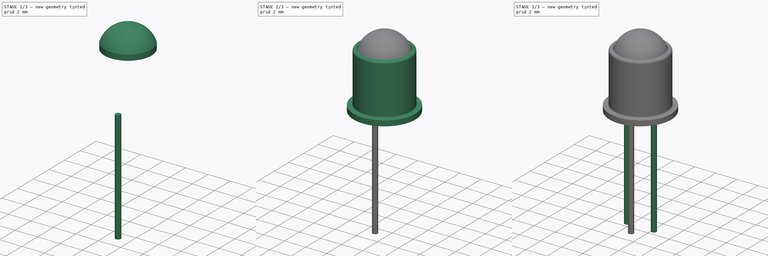
[diagram: build sequence overview — one tinted view per stage of 3, left to right]
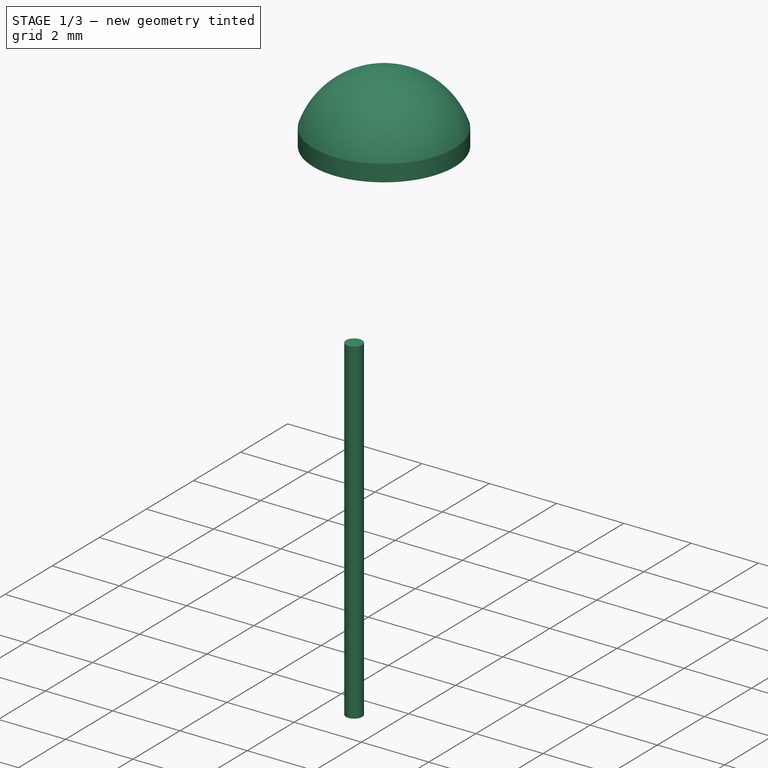
[diagram: stage 1 of 3 — iso view after this stage's code; geometry added in this stage tinted green]
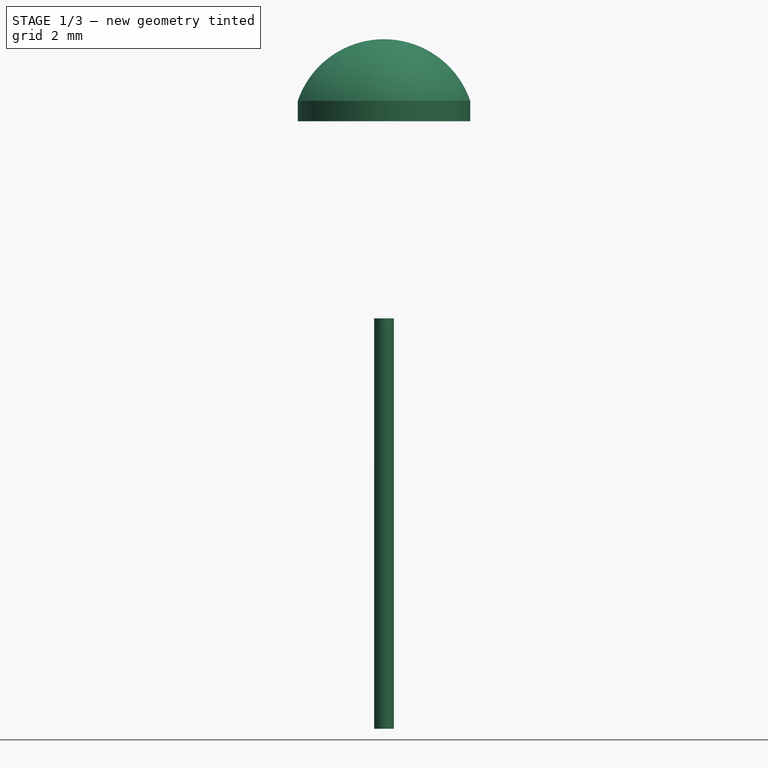
[diagram: stage 1 of 3 — front view after this stage's code; geometry added in this stage tinted green]
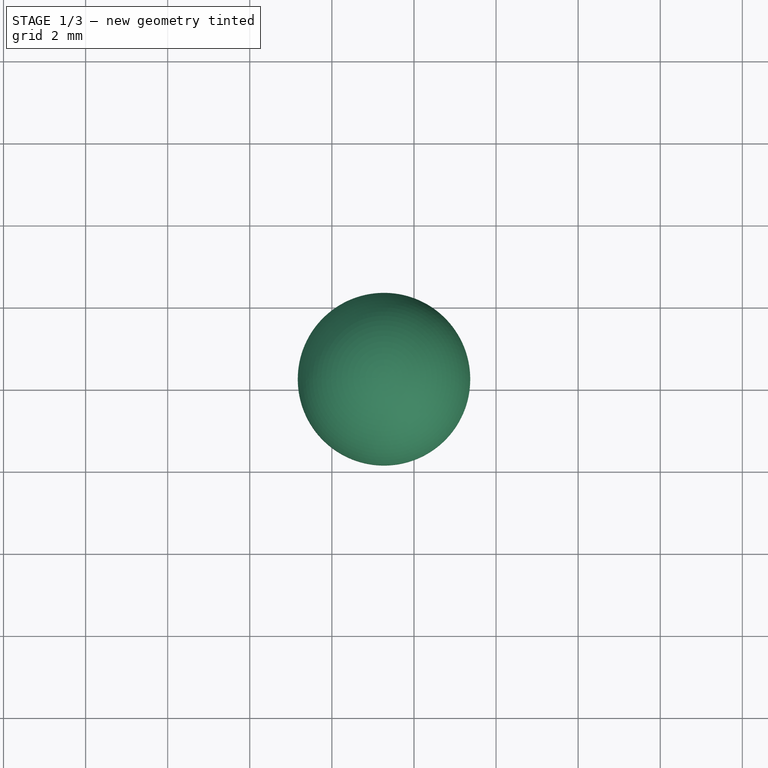
[diagram: stage 1 of 3 — top view after this stage's code; geometry added in this stage tinted green]
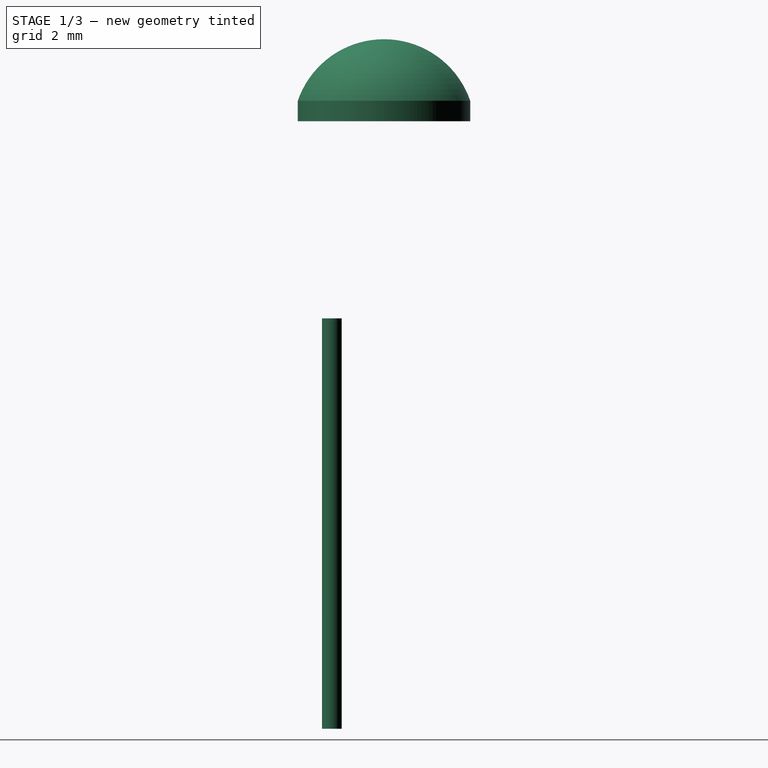
[diagram: stage 1 of 3 — right view after this stage's code; geometry added in this stage tinted green]
FCSTD DOCUMENT  (FreeCAD 0.16R6703 (Git))
Label: TO-18_Lens_3Pin
License: All rights reserved
LicenseURL: http://en.wikipedia.org/wiki/All_rights_reserved
objects: Sketcher::SketchObject×6, PartDesign::Pad×4, PartDesign::Revolution×2
note: 18 computed .brp shape members not serialized (recipe doc carries the construction recipe); baked Part::Feature solids carry a one-line shape summary decoded from their .brp

FEATURE [Sketcher::SketchObject] Sketch005
  Placement = pos=(0,0,5) rot=(0,0,1;0rad)
  sketch-geometry (1):
    g0: Circle CenterX=1.27 CenterY=-1.27 CenterZ=0 NormalX=0 NormalY=0 NormalZ=1 Radius=0.24
  constraints (3):
    c: Radius(g0) = 0.24
    c: DistanceX(g-1,g0) = 1.27
    c: DistanceY(g0,g-1) = 1.27
FEATURE [PartDesign::Pad] Pad004
  Length = 10
  Length2 = 100
  Placement = pos=(0,0,5) rot=(0,0,1;0rad)
  Reversed = true
  Sketch = -> Sketch005
  Type = 0
FEATURE [Sketcher::SketchObject] Sketch006
  Placement = pos=(0,0,0) rot=(1,0,0;1.5708rad)
  sketch-geometry (5):
    g0: ArcOfCircle CenterX=1.27 CenterY=9.5788 CenterZ=0 NormalX=0 NormalY=0 NormalZ=1 Radius=2.2212 StartAngle=1.5708 EndAngle=2.81091
    g1: LineSegment StartX=1.27 StartY=11.8 StartZ=0 EndX=1.27 EndY=9.8 EndZ=0
    g2: LineSegment StartX=1.27 StartY=9.8 StartZ=0 EndX=-0.83086 EndY=9.8 EndZ=0
    g3: LineSegment StartX=-0.83086 StartY=9.8 StartZ=0 EndX=-0.83086 EndY=10.3 EndZ=0
    g4: LineSegment [constr] StartX=1.27 StartY=10.4542 StartZ=0 EndX=1.27 EndY=7.67168 EndZ=0
  constraints (15):
    c: Coincident(g1,g0)
    c: Vertical(g1)
    c: Coincident(g2,g1)
    c: Horizontal(g2)
    c: Coincident(g3,g2)
    c: Vertical(g3)
    c: DistanceY(g1,g0) = 2
    c: DistanceY(g0,g0) = 1.5
    c: DistanceX(g-1,g1) = 1.27
    c: Coincident(g0,g3)
    c: DistanceX(g2,g2) = 2.10086
    c: DistanceX(g1,g0) = 0
    c: PointOnObject(g4,g1)
    c: Vertical(g4)
    c: DistanceY(g-1,g0) = 10.3
FEATURE [PartDesign::Revolution] Revolution001
  Angle = 360
  Axis = (0,0,-2.78251)
  Base = (1.27,0,10.4542)
  Placement = pos=(0,0,0) rot=(1,0,0;1.5708rad)
  ReferenceAxis = -> Sketch006 [Axis0]
  Reversed = true
  Sketch = -> Sketch006
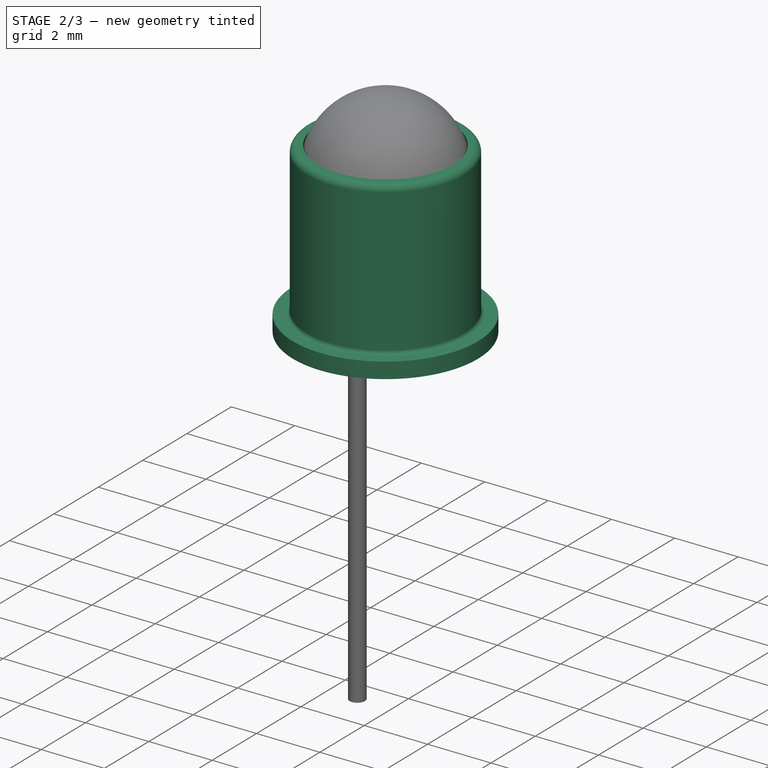
[diagram: stage 2 of 3 — iso view after this stage's code; geometry added in this stage tinted green]
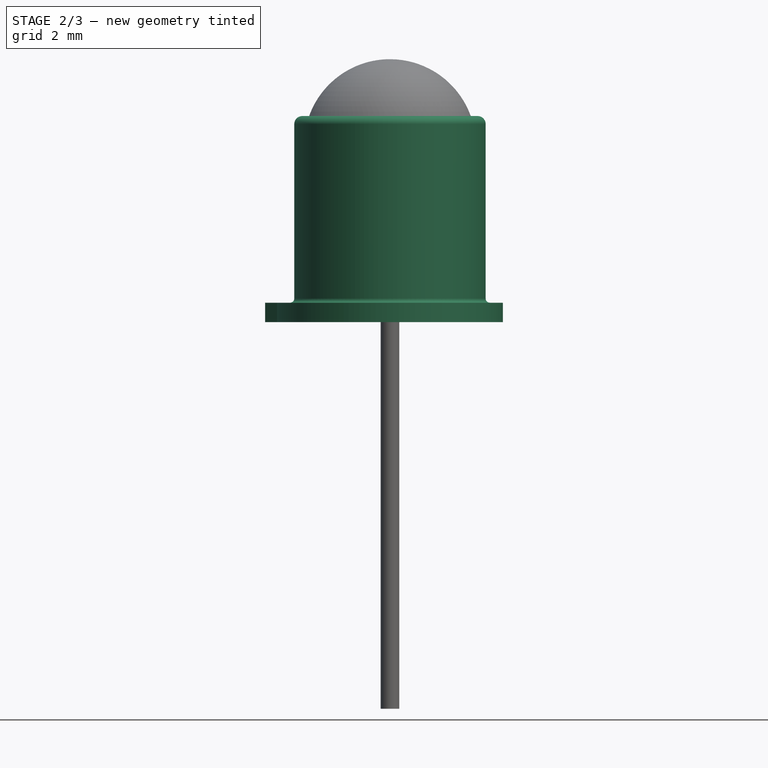
[diagram: stage 2 of 3 — front view after this stage's code; geometry added in this stage tinted green]
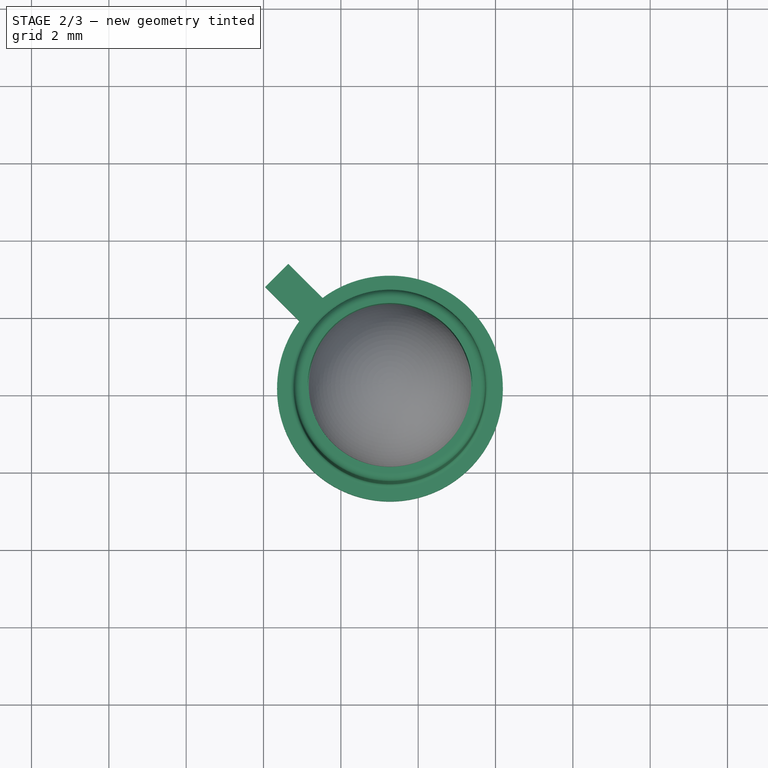
[diagram: stage 2 of 3 — top view after this stage's code; geometry added in this stage tinted green]
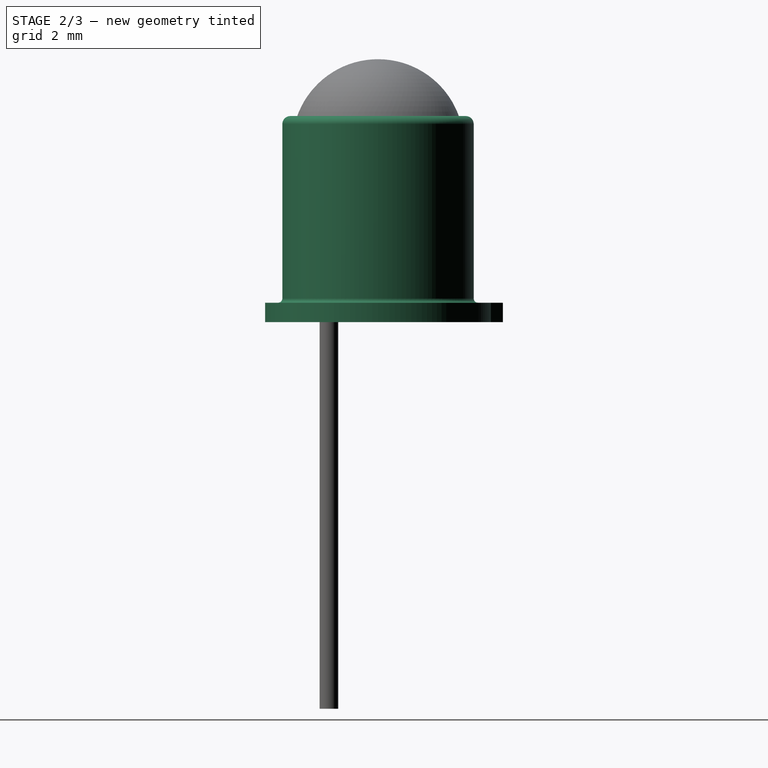
[diagram: stage 2 of 3 — right view after this stage's code; geometry added in this stage tinted green]
FEATURE [Sketcher::SketchObject] Sketch003
  Placement = pos=(0,0,0) rot=(1,0,0;1.5708rad)
  expr: Constraints[6] = 5.84 / 2
  sketch-geometry (11):
    g0: LineSegment [constr] StartX=1.27 StartY=2.55067 StartZ=0 EndX=1.27 EndY=10.33 EndZ=0
    g1: LineSegment StartX=1.27 StartY=5 StartZ=0 EndX=-1.65 EndY=5 EndZ=0
    g2: LineSegment StartX=-1.65 StartY=5 StartZ=0 EndX=-1.65 EndY=5.5 EndZ=0
    g3: LineSegment StartX=-1.65 StartY=5.5 StartZ=0 EndX=-1.31193 EndY=5.50278 EndZ=0
    g4: LineSegment StartX=-1.205 StartY=5.6106 StartZ=0 EndX=-1.205 EndY=10.123 EndZ=0
    g5: ArcOfCircle CenterX=-1.31282 CenterY=5.6106 CenterZ=0 NormalX=0 NormalY=0 NormalZ=1 Radius=0.107818 StartAngle=4.72062 EndAngle=6.28319
    g6: LineSegment StartX=-0.857826 StartY=10.33 StartZ=0 EndX=-0.857826 EndY=5.6729 EndZ=0
    g7: LineSegment StartX=-0.857826 StartY=5.6729 StartZ=0 EndX=1.27 EndY=5.6729 EndZ=0
    g8: LineSegment StartX=1.27 StartY=5.6729 StartZ=0 EndX=1.27 EndY=5 EndZ=0
    g9: LineSegment StartX=-0.857826 StartY=10.33 StartZ=0 EndX=-0.998031 EndY=10.33 EndZ=0
    g10: ArcOfCircle CenterX=-0.998031 CenterY=10.123 CenterZ=0 NormalX=0 NormalY=0 NormalZ=1 Radius=0.206969 StartAngle=1.5708 EndAngle=3.14159
  constraints (21):
    c: DistanceX(g-1,g0) = 1.27
    c: Horizontal(g1)
    c: DistanceY(g-1,g1) = 5
    c: Coincident(g2,g1)
    c: Vertical(g2)
    c: DistanceY(g2,g2) = 0.5
    c: DistanceX(g1,g1) = 2.92
    c: Coincident(g3,g2)
    c: Vertical(g4)
    c: Tangent(g3,g5) = -1.5708
    c: Tangent(g4,g5) = -1.5708
    c: Vertical(g6)
    c: Coincident(g7,g6)
    c: Horizontal(g7)
    c: Vertical(g0)
    c: Coincident(g9,g6)
    c: Horizontal(g9)
    c: DistanceY(g1,g6) = 5.33
    c: Tangent(g4,g10) = 1.5708
    c: Tangent(g9,g10) = -1.5708
    c: DistanceX(g4,g0) = 2.475
FEATURE [PartDesign::Revolution] Revolution
  Angle = 360
  Axis = (0,0,7.77933)
  Base = (1.27,0,2.55067)
  Placement = pos=(0,0,0) rot=(1,0,0;1.5708rad)
  ReferenceAxis = -> Sketch003 [Axis0]
  Sketch = -> Sketch003
FEATURE [Sketcher::SketchObject] Sketch004
  Placement = pos=(0,0,5) rot=(0,0,1;0rad)
  expr: Constraints[11] = 5.84 / 2 + 1.22
  sketch-geometry (5):
    g0: GeomPoint [constr] X=1.27 Y=0 Z=0
    g1: LineSegment StartX=1.57052 StartY=0.30052 StartZ=0 EndX=-1.3569 EndY=3.22794 EndZ=0
    g2: LineSegment StartX=0.96948 StartY=-0.30052 StartZ=0 EndX=-1.95794 EndY=2.6269 EndZ=0
    g3: LineSegment StartX=-1.95794 StartY=2.6269 StartZ=0 EndX=-1.3569 EndY=3.22794 EndZ=0
    g4: LineSegment StartX=0.96948 StartY=-0.30052 StartZ=0 EndX=1.57052 EndY=0.30052 EndZ=0
  constraints (14):
    c: PointOnObject(g0,g-1)
    c: DistanceX(g-1,g0) = 1.27
    c: Coincident(g3,g2)
    c: Coincident(g3,g1)
    c: Coincident(g4,g2)
    c: Coincident(g4,g1)
    c: PointOnObject(g0,g4)
    c: Parallel(g4,g3)
    c: Parallel(g2,g1)
    c: Perpendicular(g2,g3)
    c: Distance(g3) = 0.85
    c: Distance(g1) = 4.14
    c: Symmetric(g4,g4,g0)
    c: Angle(g4,g-1) = 2.35619
FEATURE [PartDesign::Pad] Pad003
  Length = 0.5
  Length2 = 100
  Placement = pos=(0,0,5) rot=(0,0,1;0rad)
  Sketch = -> Sketch004
  Type = 0
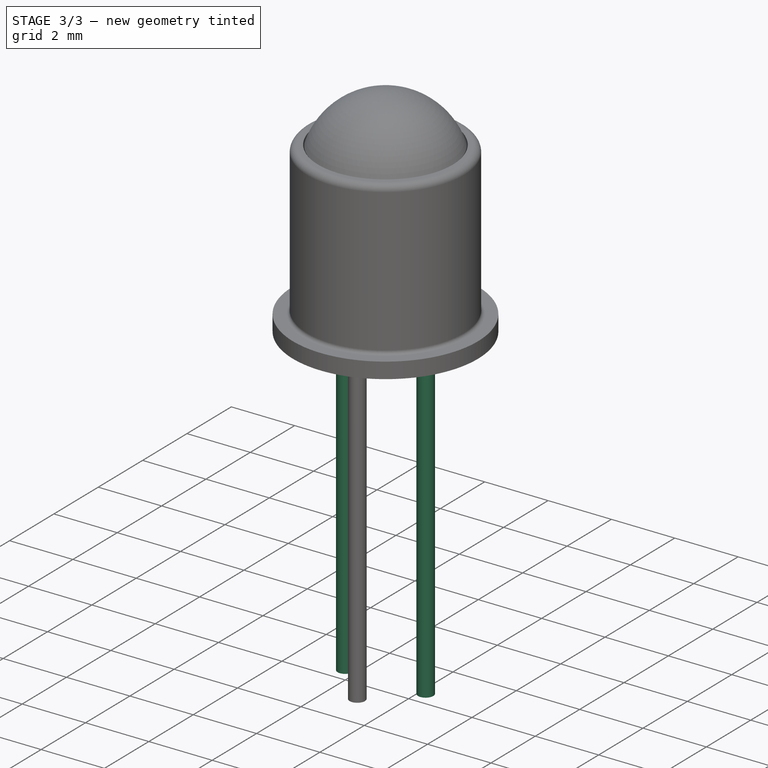
[diagram: stage 3 of 3 — iso view after this stage's code; geometry added in this stage tinted green]
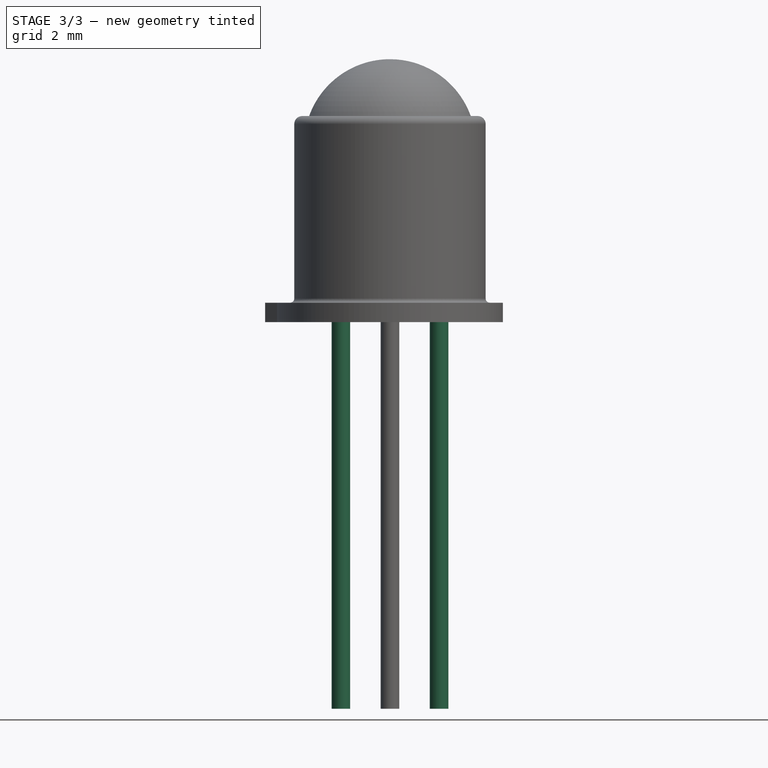
[diagram: stage 3 of 3 — front view after this stage's code; geometry added in this stage tinted green]
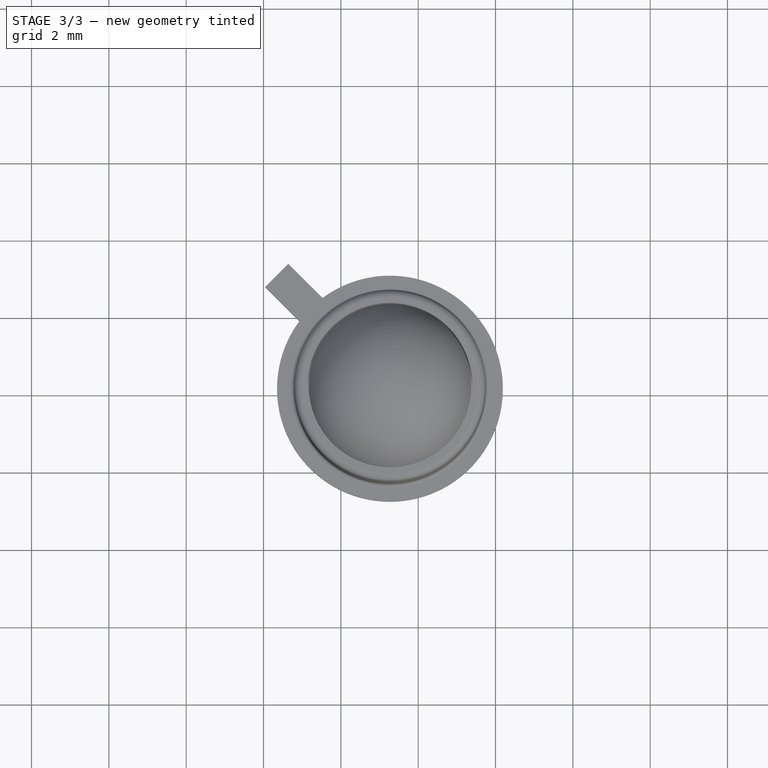
[diagram: stage 3 of 3 — top view after this stage's code; geometry added in this stage tinted green]
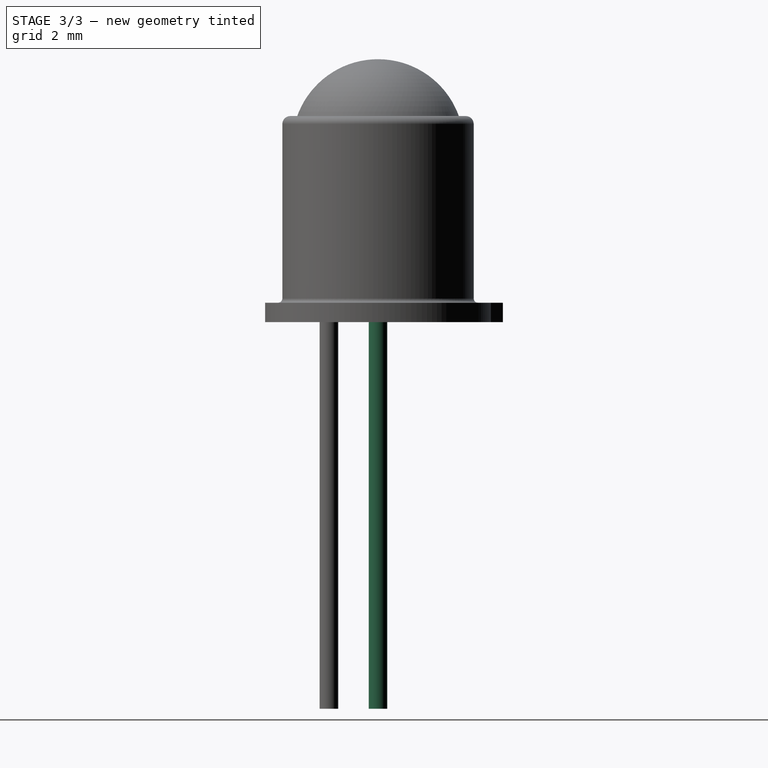
[diagram: stage 3 of 3 — right view after this stage's code; geometry added in this stage tinted green]
FEATURE [Sketcher::SketchObject] Sketch
  Placement = pos=(0,0,5) rot=(0,0,1;0rad)
  expr: Constraints[1] = 0.48 / 2
  sketch-geometry (1):
    g0: Circle CenterX=0 CenterY=0 CenterZ=0 NormalX=0 NormalY=0 NormalZ=1 Radius=0.24
  constraints (2):
    c: Coincident(g0,g-1)
    c: Radius(g0) = 0.24
FEATURE [Sketcher::SketchObject] Sketch001
  Placement = pos=(0,0,5) rot=(0,0,1;0rad)
  sketch-geometry (1):
    g0: Circle CenterX=2.54 CenterY=0 CenterZ=0 NormalX=0 NormalY=0 NormalZ=1 Radius=0.24
  constraints (3):
    c: Radius(g0) = 0.24
    c: DistanceX(g-1,g0) = 2.54
    c: DistanceY(g0,g-1) = 0
FEATURE [PartDesign::Pad] Pad
  Length = 10
  Length2 = 100
  Placement = pos=(0,0,5) rot=(0,0,1;0rad)
  Reversed = true
  Sketch = -> Sketch
  Type = 0
FEATURE [PartDesign::Pad] Pad002
  Length = 10
  Length2 = 100
  Placement = pos=(0,0,5) rot=(0,0,1;0rad)
  Reversed = true
  Sketch = -> Sketch001
  Type = 0
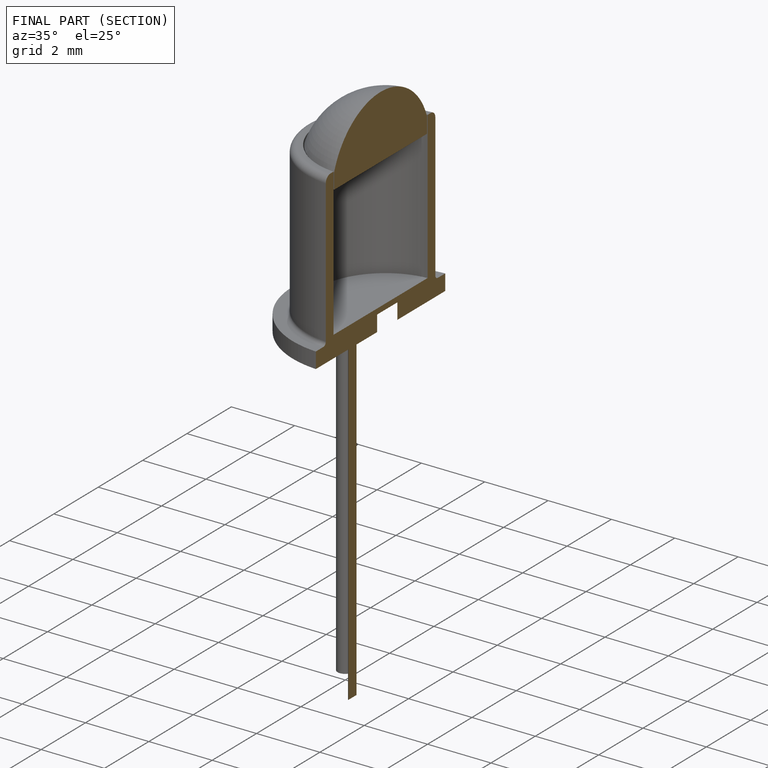
[diagram: finished part — half-section view (interior)]
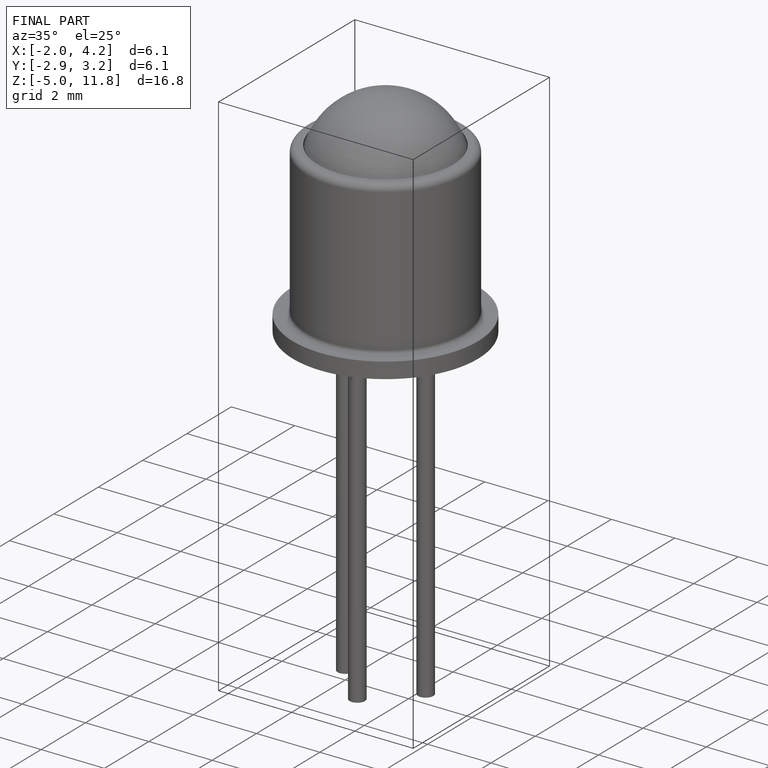
[diagram: finished part — iso view with bounding-box wireframe]
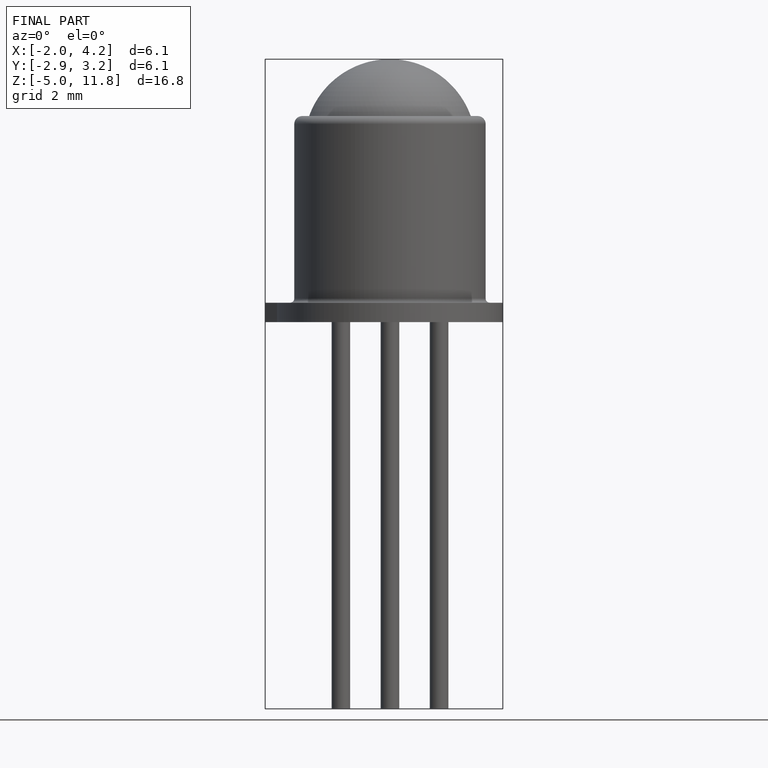
[diagram: finished part — front view with bounding-box wireframe]
